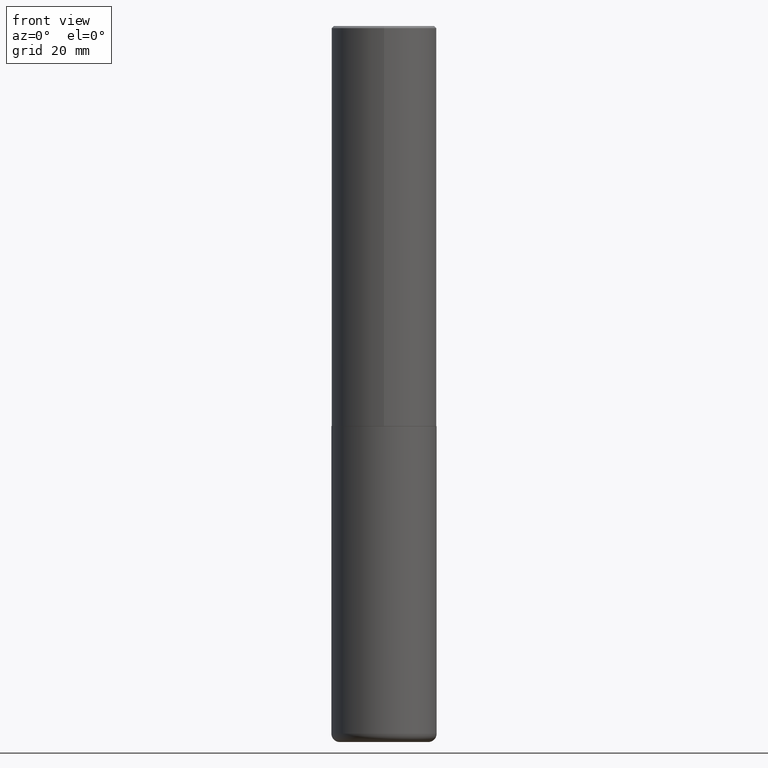
[diagram: clean part render]
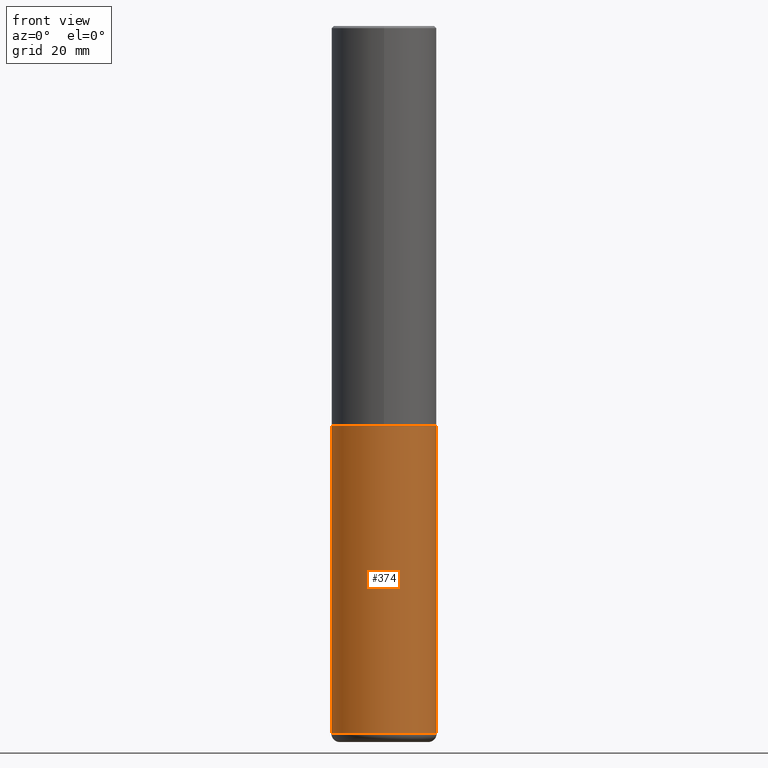
[diagram: same view with one face highlighted and labeled with its STEP entity id]
A machine part, front view. The second image highlights one B-rep face of the part: STEP entity #374.
In plain terms, the highlighted cylindrical surface (partial cylindrical patch) has radius 12.5006 mm, axis along (-0, 0, 1).
Its self-contained STEP definition (entity closure, byte-faithful):
#16 = VERTEX_POINT ( 'NONE', #20 ) ;
#20 = CARTESIAN_POINT ( 'NONE',  ( -0.4921499999999999764, -1.457898653934845976E-14, -3.740100000000000424 ) ) ;
#25 = EDGE_CURVE ( 'NONE', #16, #320, #401, .T. ) ;
#58 = CARTESIAN_POINT ( 'NONE',  ( 0.4921499999999999764, -2.653002095319962551E-14, -6.614199999999999413 ) ) ;
#70 = DIRECTION ( 'NONE',  ( 1.000000000000000000, -6.982962677686266711E-15, 0.000000000000000000 ) ) ;
#91 = DIRECTION ( 'NONE',  ( -2.445468806185136597E-29, 3.491481338843145583E-15, 1.000000000000000000 ) ) ;
#102 = AXIS2_PLACEMENT_3D ( 'NONE', #382, #206, #361 ) ;
#107 = EDGE_LOOP ( 'NONE', ( #367, #125, #398, #366 ) ) ;
#125 = ORIENTED_EDGE ( 'NONE', *, *, #396, .T. ) ;
#133 = EDGE_CURVE ( 'NONE', #310, #16, #402, .T. ) ;
#149 = CARTESIAN_POINT ( 'NONE',  ( -0.4921499999999999764, 3.496936074043332897E-15, -2.420853904668951509E-29 ) ) ;
#150 = DIRECTION ( 'NONE',  ( -2.445468806185136877E-29, 3.491481338843145188E-15, 1.000000000000000000 ) ) ;
#154 = VECTOR ( 'NONE', #150, 39.37007874015748143 ) ;
#191 = AXIS2_PLACEMENT_3D ( 'NONE', #342, #91, #372 ) ;
#192 = AXIS2_PLACEMENT_3D ( 'NONE', #239, #271, #70 ) ;
#193 = LINE ( 'NONE', #256, #386 ) ;
#206 = DIRECTION ( 'NONE',  ( -2.445468806185136597E-29, 3.491481338843145583E-15, 1.000000000000000000 ) ) ;
#239 = CARTESIAN_POINT ( 'NONE',  ( 1.617481977786973037E-28, -2.309335587137633131E-14, -6.614199999999999413 ) ) ;
#256 = CARTESIAN_POINT ( 'NONE',  ( 0.4921499999999999764, -3.436665081823295777E-15, 2.399810400207969603E-29 ) ) ;
#261 = CYLINDRICAL_SURFACE ( 'NONE', #102, 0.4921499999999999764 ) ;
#264 = DIRECTION ( 'NONE',  ( -2.445468806185136877E-29, 3.491481338843145188E-15, 1.000000000000000000 ) ) ;
#271 = DIRECTION ( 'NONE',  ( -2.445468806185136597E-29, 3.491481338843145583E-15, 1.000000000000000000 ) ) ;
#273 = FACE_OUTER_BOUND ( 'NONE', #107, .T. ) ;
#274 = EDGE_CURVE ( 'NONE', #301, #320, #193, .T. ) ;
#301 = VERTEX_POINT ( 'NONE', #58 ) ;
#310 = VERTEX_POINT ( 'NONE', #383 ) ;
#320 = VERTEX_POINT ( 'NONE', #385 ) ;
#342 = CARTESIAN_POINT ( 'NONE',  ( 9.146297882013029477E-29, -1.305848935540725085E-14, -3.740100000000000424 ) ) ;
#361 = DIRECTION ( 'NONE',  ( 1.000000000000000000, -6.982962677686265922E-15, 4.876176775795935793E-29 ) ) ;
#365 = CIRCLE ( 'NONE', #192, 0.4921499999999999209 ) ;
#366 = ORIENTED_EDGE ( 'NONE', *, *, #25, .F. ) ;
#367 = ORIENTED_EDGE ( 'NONE', *, *, #133, .F. ) ;
#372 = DIRECTION ( 'NONE',  ( 1.000000000000000000, -6.982962677686265922E-15, 0.000000000000000000 ) ) ;
#374 = ADVANCED_FACE ( 'NONE', ( #273 ), #261, .T. ) ;
#382 = CARTESIAN_POINT ( 'NONE',  ( 0.000000000000000000, 0.000000000000000000, 0.000000000000000000 ) ) ;
#383 = CARTESIAN_POINT ( 'NONE',  ( -0.4921499999999999764, -1.959641979733300078E-14, -6.614199999999999413 ) ) ;
#385 = CARTESIAN_POINT ( 'NONE',  ( 0.4921499999999999764, -1.649515443723054663E-14, -3.740100000000000424 ) ) ;
#386 = VECTOR ( 'NONE', #264, 39.37007874015748143 ) ;
#396 = EDGE_CURVE ( 'NONE', #310, #301, #365, .T. ) ;
#398 = ORIENTED_EDGE ( 'NONE', *, *, #274, .T. ) ;
#401 = CIRCLE ( 'NONE', #191, 0.4921499999999999764 ) ;
#402 = LINE ( 'NONE', #149, #154 ) ;